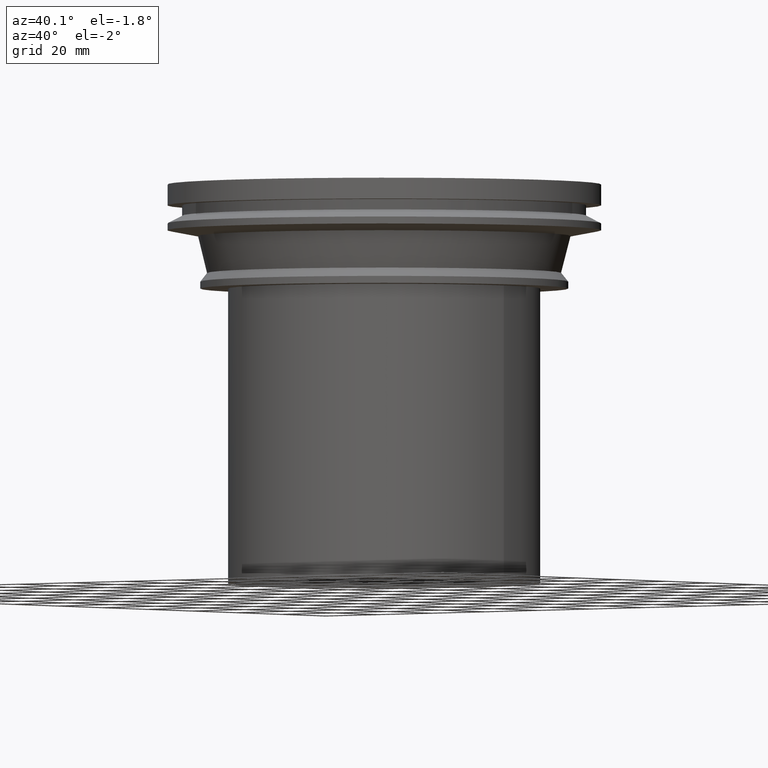
[diagram: clean part render]
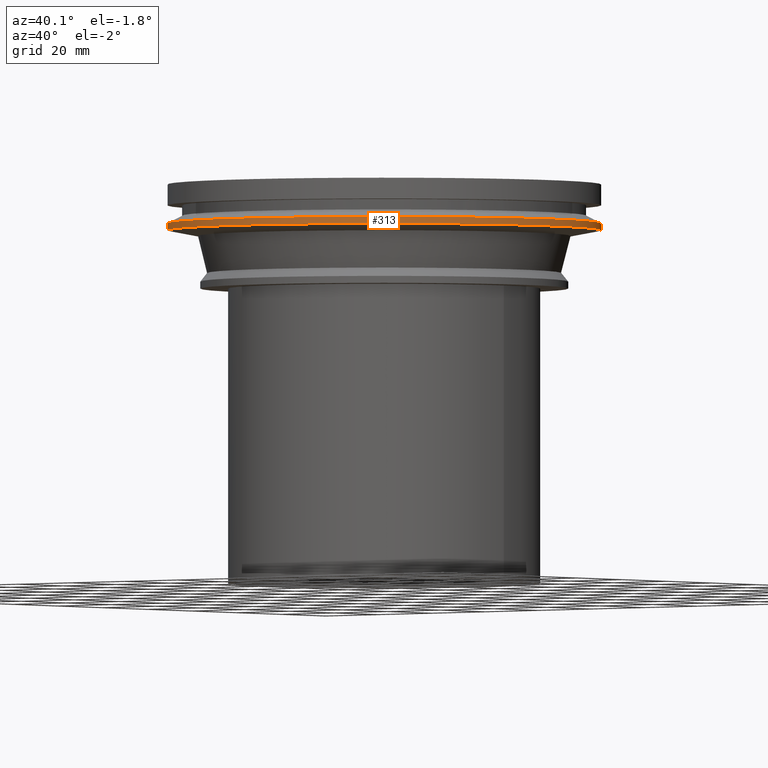
[diagram: same view with one face highlighted and labeled with its STEP entity id]
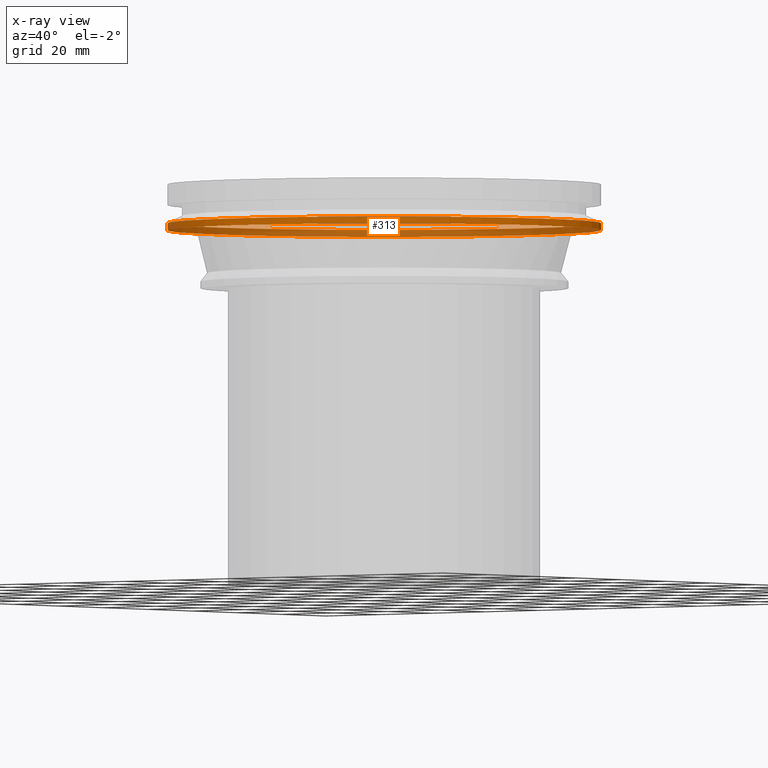
[diagram: x-ray of the same camera — body ghosted, the highlighted face saturated]
A machine part, auxiliary view. The second image highlights one B-rep face of the part: STEP entity #313.
The next image is the same camera in x-ray: the body ghosted, the highlighted face saturated — about 48% of this face is hidden behind the body in this view.
In plain terms, the highlighted cylindrical surface (bore or boss wall) has radius 62.5 mm, axis along (0, 0, -1).
Its self-contained STEP definition (entity closure, byte-faithful):
#46=CYLINDRICAL_SURFACE('',#390,62.5);
#94=ORIENTED_EDGE('',*,*,#124,.T.);
#95=ORIENTED_EDGE('',*,*,#123,.F.);
#123=EDGE_CURVE('',#149,#149,#175,.T.);
#124=EDGE_CURVE('',#150,#150,#176,.T.);
#149=VERTEX_POINT('',#578);
#150=VERTEX_POINT('',#581);
#175=CIRCLE('',#389,62.5);
#176=CIRCLE('',#391,62.5);
#224=EDGE_LOOP('',(#94));
#225=EDGE_LOOP('',(#95));
#276=FACE_BOUND('',#224,.T.);
#277=FACE_BOUND('',#225,.T.);
#313=ADVANCED_FACE('',(#276,#277),#46,.T.);
#389=AXIS2_PLACEMENT_3D('',#577,#492,#493);
#390=AXIS2_PLACEMENT_3D('',#579,#494,#495);
#391=AXIS2_PLACEMENT_3D('',#580,#496,#497);
#492=DIRECTION('',(0.,0.,-1.));
#493=DIRECTION('',(-1.,0.,0.));
#494=DIRECTION('',(0.,0.,-1.));
#495=DIRECTION('',(-1.,0.,0.));
#496=DIRECTION('',(0.,0.,-1.));
#497=DIRECTION('',(-1.,0.,0.));
#577=CARTESIAN_POINT('',(0.,0.,-13.184));
#578=CARTESIAN_POINT('',(-62.5,0.,-13.184));
#579=CARTESIAN_POINT('',(0.,0.,-50.));
#580=CARTESIAN_POINT('',(0.,0.,-11.184));
#581=CARTESIAN_POINT('',(-62.5,0.,-11.184));